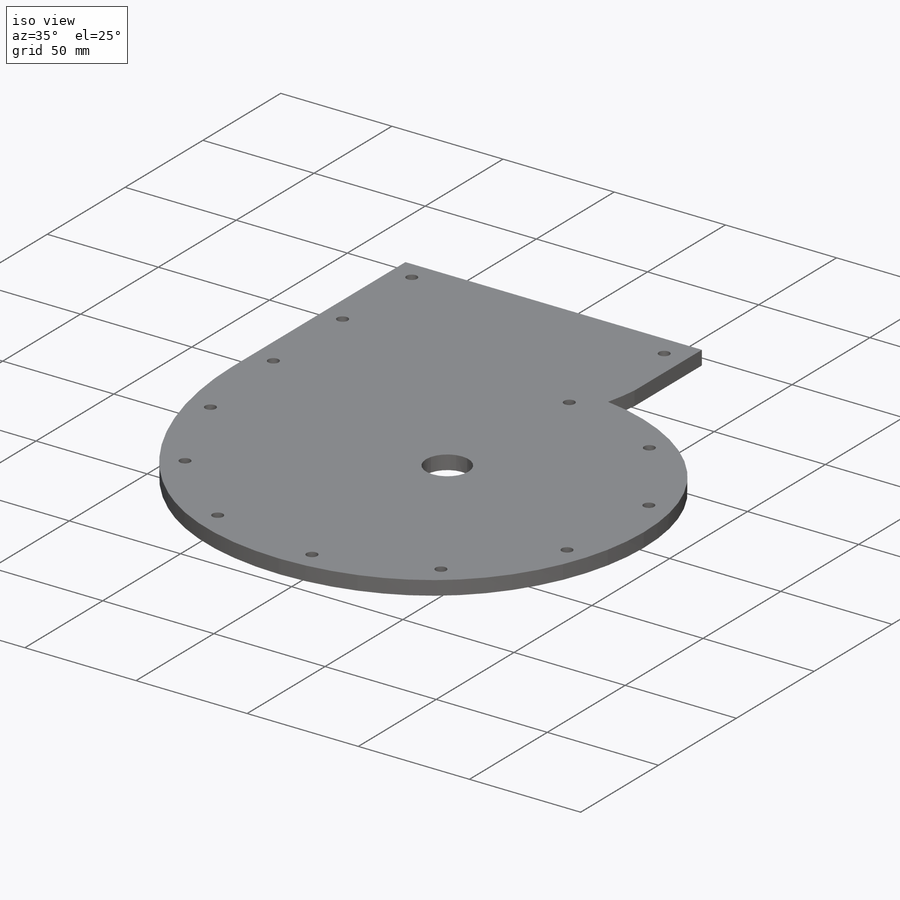
[diagram: iso view]
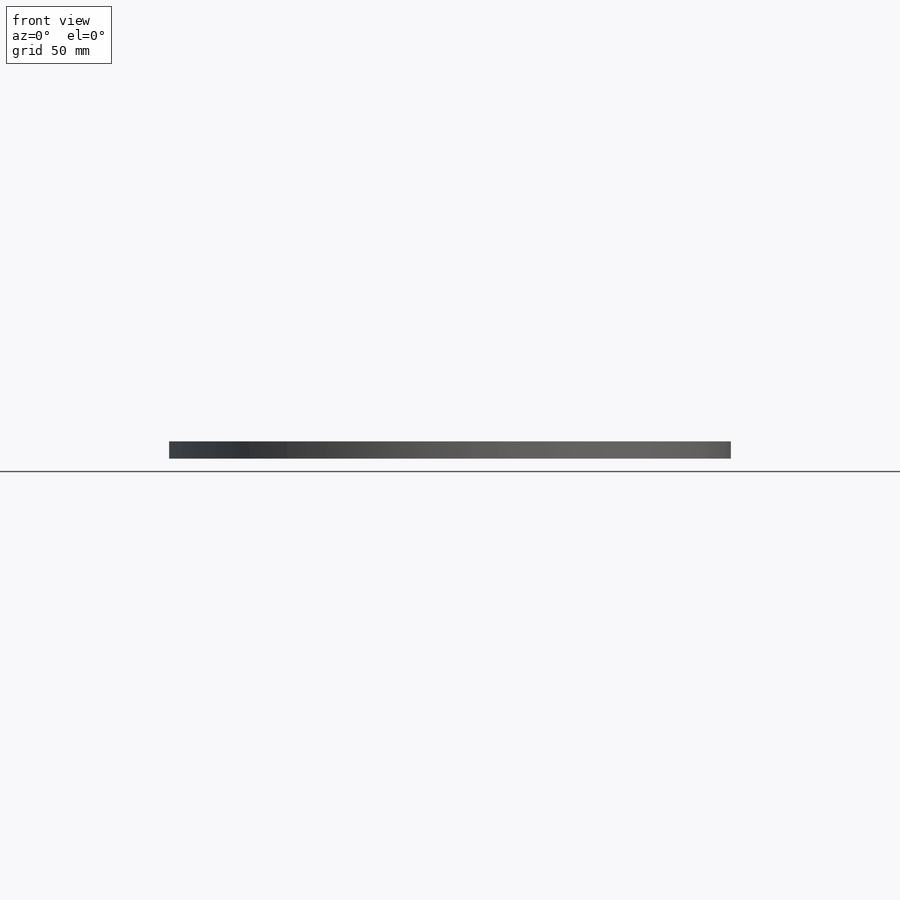
[diagram: front view]
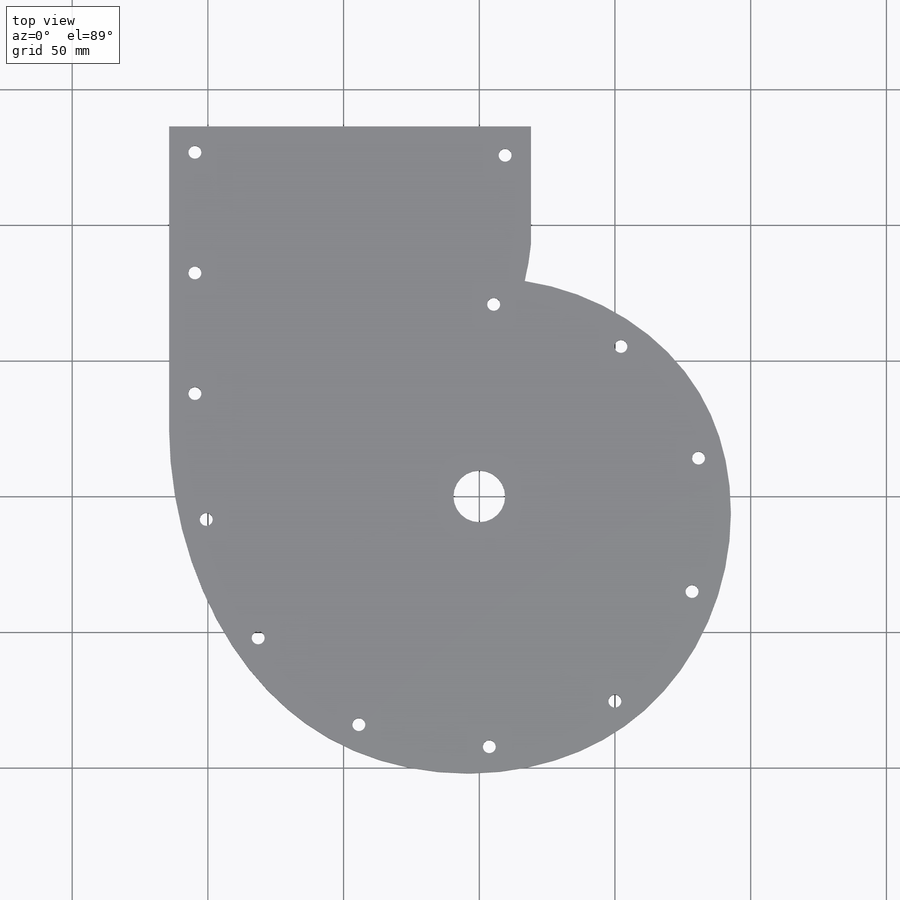
[diagram: top view]
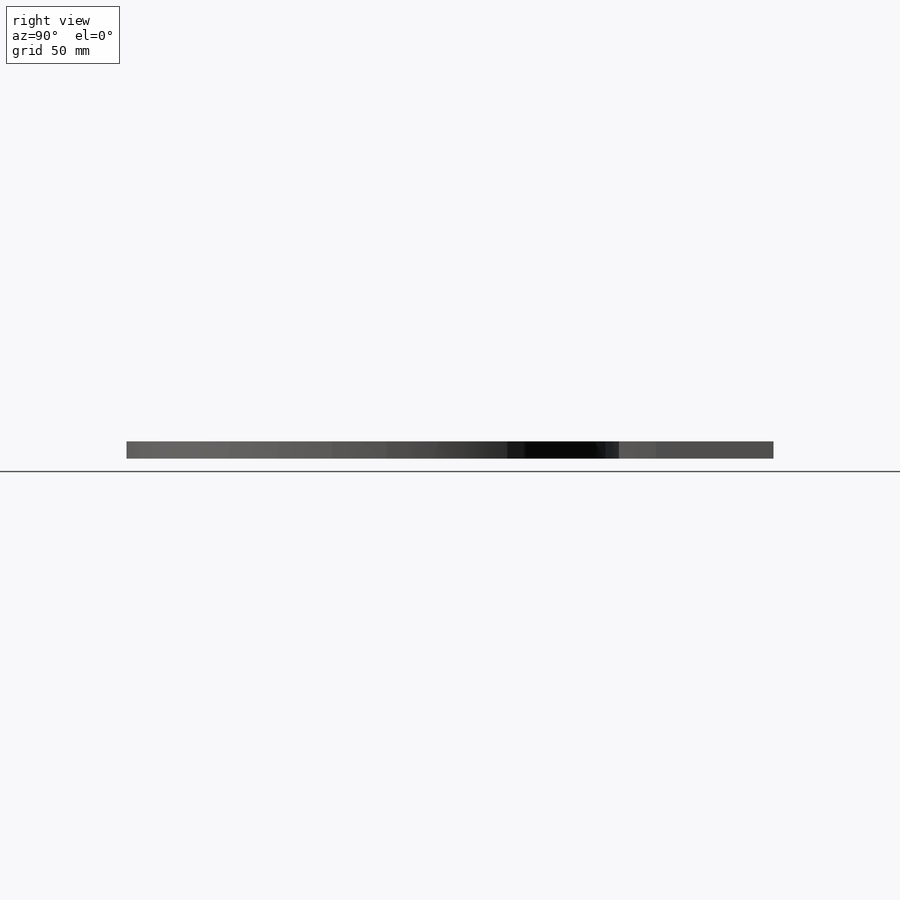
[diagram: right view]
SOLIDWORKS PART (.sldprt)
format: sldprt  version: not decoded by parser v0  size: 452,608 bytes
history: native  units: mm
features: sketch x4, extrude x2, fillet x2, material x1, cut_extrude x1 (+13 scaffold rows collapsed)
feature tree (23):
  scaffold x13  (default folders/planes/origin — collapsed)
  material  "Pine"
  sketch  "Sketch1"  dims[D1=101.6mm D2=120.65mm D3=190.5mm D4=9.525mm D5=9.525mm D6=19.05mm]
  extrude  "Boss-Extrude1"  Depth=6.35mm
  fillet  "Fillet1"  Radius=2.54mm
  fillet  "Fillet2"  Radius=0.79375mm
  sketch  "Sketch4"  dims[c1.D1=4.7625mm c1.D2=4.064mm c1.D3=4.064mm c1.D4=4.064mm c2.D2=9.525mm c2.D3=9.525mm]
  cut_extrude  "Cut-Extrude3"  Depth=6.35mm
  sketch  "Sketch5"  dims[D1=19.05mm]
  extrude  "Boss-Extrude2"  Depth=6.35mm
  sketch  "Sketch6"  dims[D1=0.0mm]
decode coverage: 9 of 9 modeling features carry decoded parameters
note: suppression state not decoded; provenance and decode notes live in map.json
